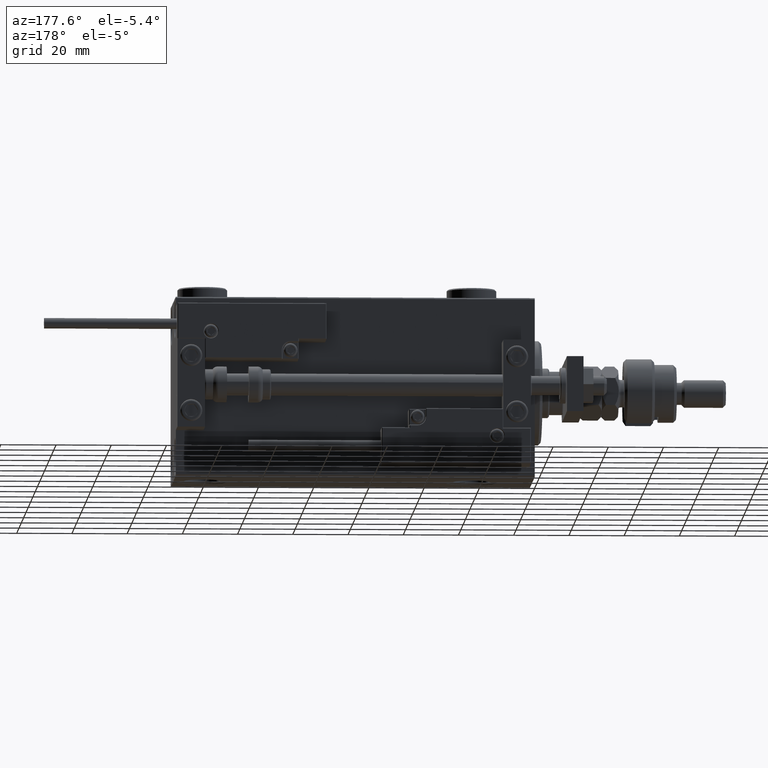
[diagram: clean part render]
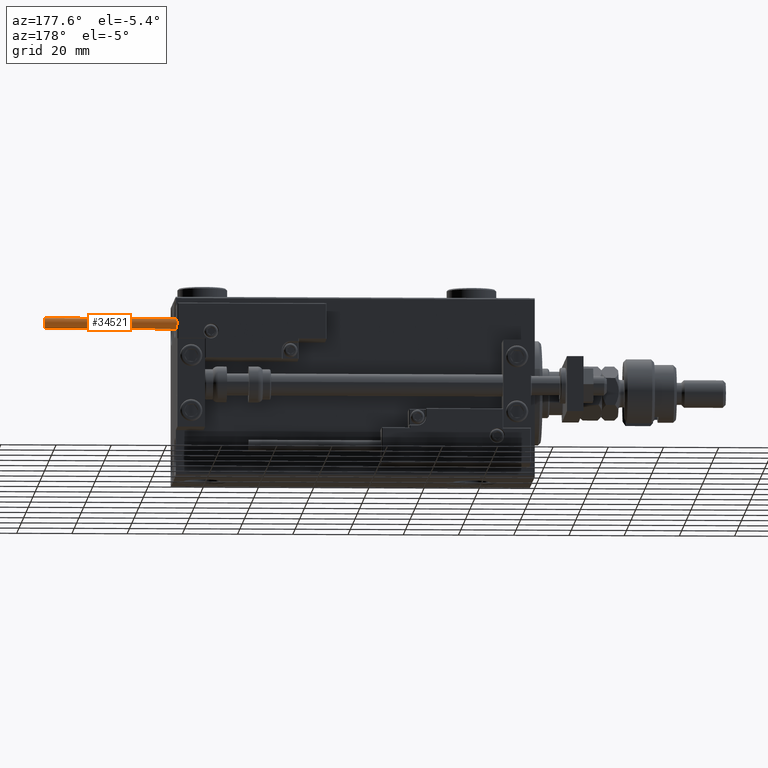
[diagram: same view with one face highlighted and labeled with its STEP entity id]
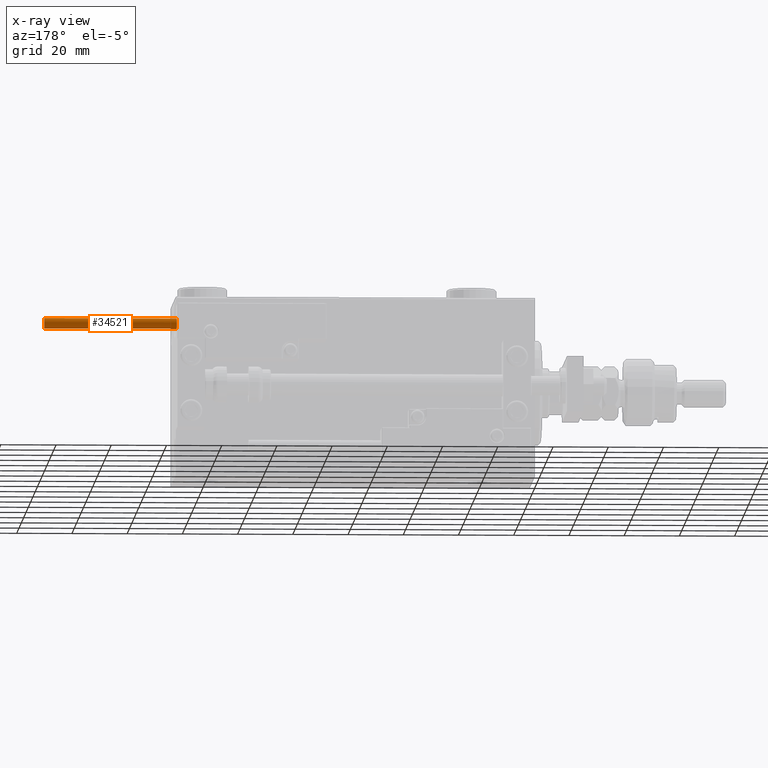
[diagram: x-ray of the same camera — body ghosted, the highlighted face saturated]
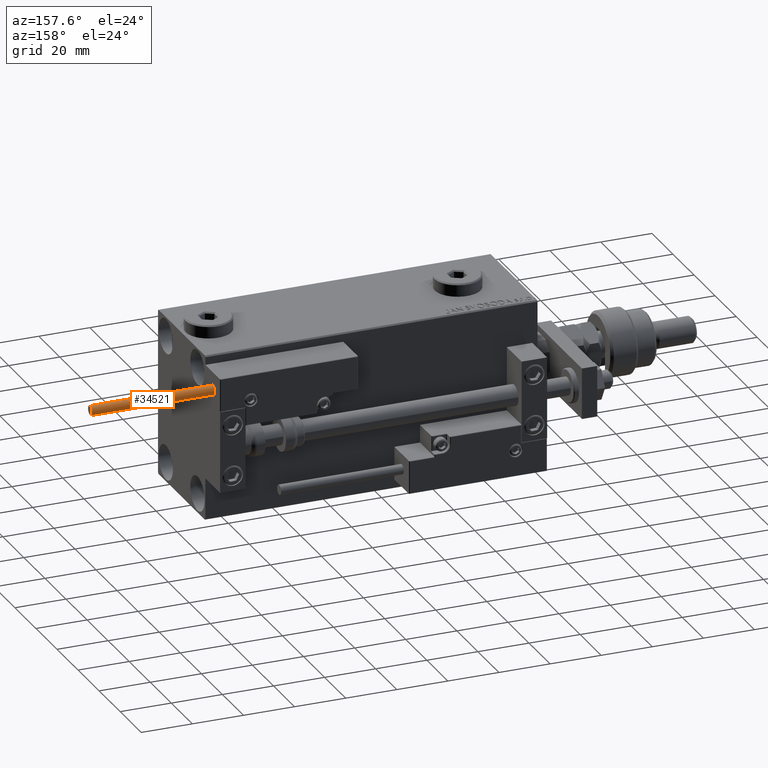
[diagram: same view with one face highlighted and labeled with its STEP entity id]
A machine part, auxiliary view. The second image highlights one B-rep face of the part: STEP entity #34521.
The next image is the same camera in x-ray: the body ghosted, the highlighted face saturated — about 0% of this face is hidden behind the body in this view.
A second angle (auxiliary view) of the same face is appended — the face is thin or edge-on in the first view.
In plain terms, the highlighted cylindrical surface (edge-blend (fillet) strip) has radius 1.9 mm, axis along (-1, -0, 0).
Its self-contained STEP definition (entity closure, byte-faithful):
#2293 = FACE_OUTER_BOUND ( 'NONE', #45974, .T. ) ;
#3823 = ORIENTED_EDGE ( 'NONE', *, *, #21616, .T. ) ;
#5101 = VERTEX_POINT ( 'NONE', #24035 ) ;
#6147 = DIRECTION ( 'NONE',  ( -1.000000000000000000, 0.000000000000000000, 0.000000000000000000 ) ) ;
#7101 = ORIENTED_EDGE ( 'NONE', *, *, #18637, .T. ) ;
#9110 = DIRECTION ( 'NONE',  ( -0.000000000000000000, -0.000000000000000000, -1.000000000000000000 ) ) ;
#11981 = ORIENTED_EDGE ( 'NONE', *, *, #46220, .F. ) ;
#13220 = LINE ( 'NONE', #29990, #32845 ) ;
#13234 = ORIENTED_EDGE ( 'NONE', *, *, #32247, .F. ) ;
#13627 = VERTEX_POINT ( 'NONE', #38320 ) ;
#14949 = CYLINDRICAL_SURFACE ( 'NONE', #44733, 1.899999999999999467 ) ;
#15938 = VERTEX_POINT ( 'NONE', #28237 ) ;
#17498 = AXIS2_PLACEMENT_3D ( 'NONE', #39933, #26224, #42966 ) ;
#18637 = EDGE_CURVE ( 'NONE', #30354, #15938, #13220, .T. ) ;
#19466 = CARTESIAN_POINT ( 'NONE',  ( 0.000000000000000000, 0.000000000000000000, 0.000000000000000000 ) ) ;
#20125 = VECTOR ( 'NONE', #29303, 1000.000000000000000 ) ;
#21616 = EDGE_CURVE ( 'NONE', #15938, #13627, #32091, .T. ) ;
#24035 = CARTESIAN_POINT ( 'NONE',  ( -1.899999999999999467, 0.000000000000000000, 48.00000000000000000 ) ) ;
#26224 = DIRECTION ( 'NONE',  ( 0.000000000000000000, 0.000000000000000000, 1.000000000000000000 ) ) ;
#27044 = CARTESIAN_POINT ( 'NONE',  ( 0.000000000000000000, 0.000000000000000000, 48.00000000000000000 ) ) ;
#28237 = CARTESIAN_POINT ( 'NONE',  ( 1.899999999999999467, 2.326828918379970872E-16, 0.000000000000000000 ) ) ;
#28604 = AXIS2_PLACEMENT_3D ( 'NONE', #19466, #31846, #35687 ) ;
#29022 = CARTESIAN_POINT ( 'NONE',  ( -1.899999999999999467, 0.000000000000000000, 48.00000000000000000 ) ) ;
#29303 = DIRECTION ( 'NONE',  ( -0.000000000000000000, -0.000000000000000000, -1.000000000000000000 ) ) ;
#29990 = CARTESIAN_POINT ( 'NONE',  ( 1.899999999999999467, 2.326828918379970872E-16, 48.00000000000000000 ) ) ;
#30354 = VERTEX_POINT ( 'NONE', #37814 ) ;
#31846 = DIRECTION ( 'NONE',  ( 0.000000000000000000, 0.000000000000000000, 1.000000000000000000 ) ) ;
#32091 = CIRCLE ( 'NONE', #28604, 1.899999999999999467 ) ;
#32247 = EDGE_CURVE ( 'NONE', #30354, #5101, #38540, .T. ) ;
#32845 = VECTOR ( 'NONE', #9110, 1000.000000000000000 ) ;
#33970 = LINE ( 'NONE', #29022, #20125 ) ;
#34521 = ADVANCED_FACE ( 'NONE', ( #2293 ), #14949, .T. ) ;
#35687 = DIRECTION ( 'NONE',  ( 1.000000000000000000, 0.000000000000000000, 0.000000000000000000 ) ) ;
#37814 = CARTESIAN_POINT ( 'NONE',  ( 1.899999999999999467, 2.326828918379970872E-16, 48.00000000000000000 ) ) ;
#38320 = CARTESIAN_POINT ( 'NONE',  ( -1.899999999999999467, 0.000000000000000000, 0.000000000000000000 ) ) ;
#38540 = CIRCLE ( 'NONE', #17498, 1.899999999999999467 ) ;
#39933 = CARTESIAN_POINT ( 'NONE',  ( 0.000000000000000000, 0.000000000000000000, 48.00000000000000000 ) ) ;
#42966 = DIRECTION ( 'NONE',  ( 1.000000000000000000, 0.000000000000000000, 0.000000000000000000 ) ) ;
#44733 = AXIS2_PLACEMENT_3D ( 'NONE', #27044, #48175, #6147 ) ;
#45974 = EDGE_LOOP ( 'NONE', ( #13234, #7101, #3823, #11981 ) ) ;
#46220 = EDGE_CURVE ( 'NONE', #5101, #13627, #33970, .T. ) ;
#48175 = DIRECTION ( 'NONE',  ( -0.000000000000000000, -0.000000000000000000, -1.000000000000000000 ) ) ;